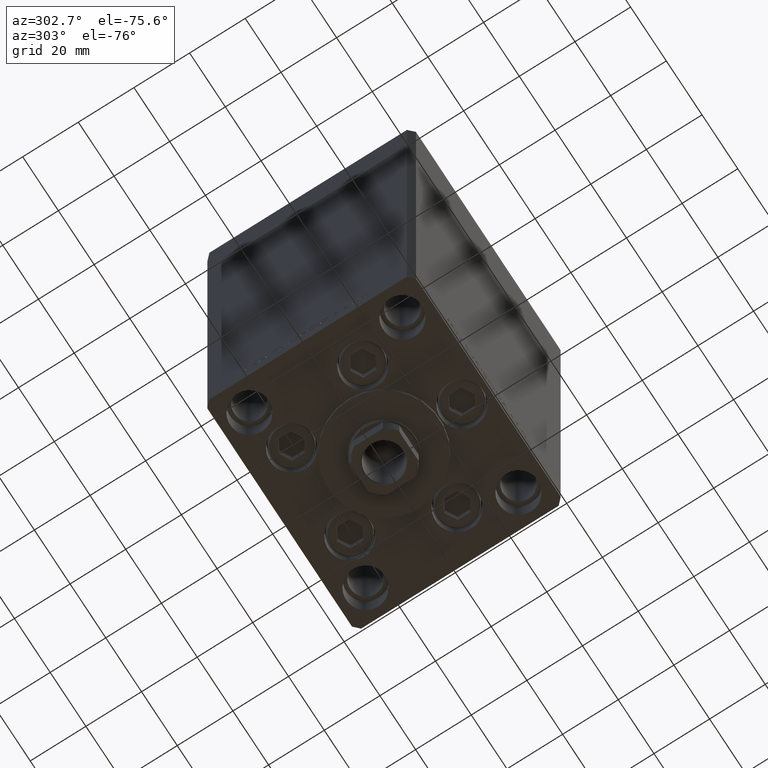
[diagram: clean part render]
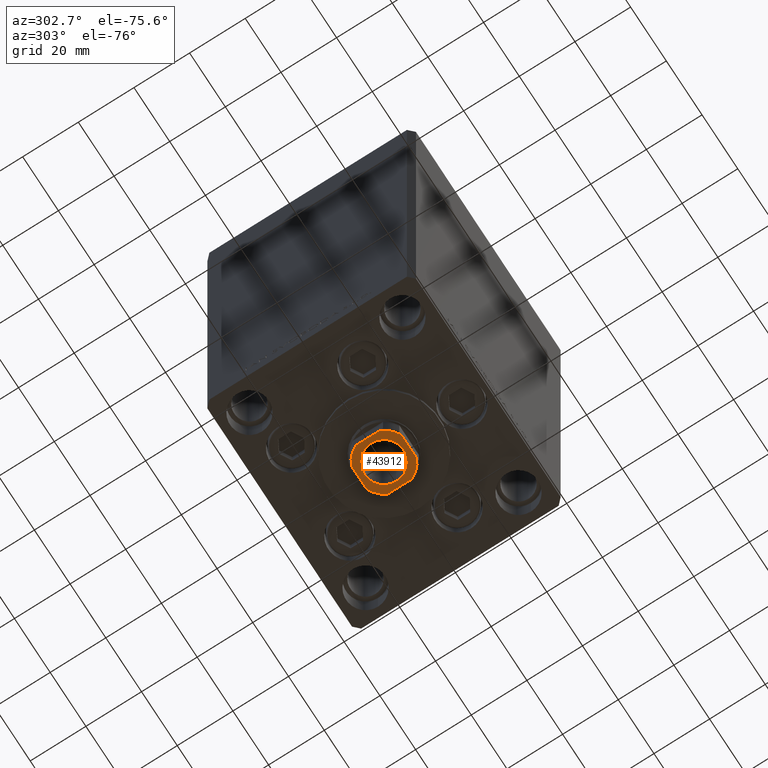
[diagram: same view with one face highlighted and labeled with its STEP entity id]
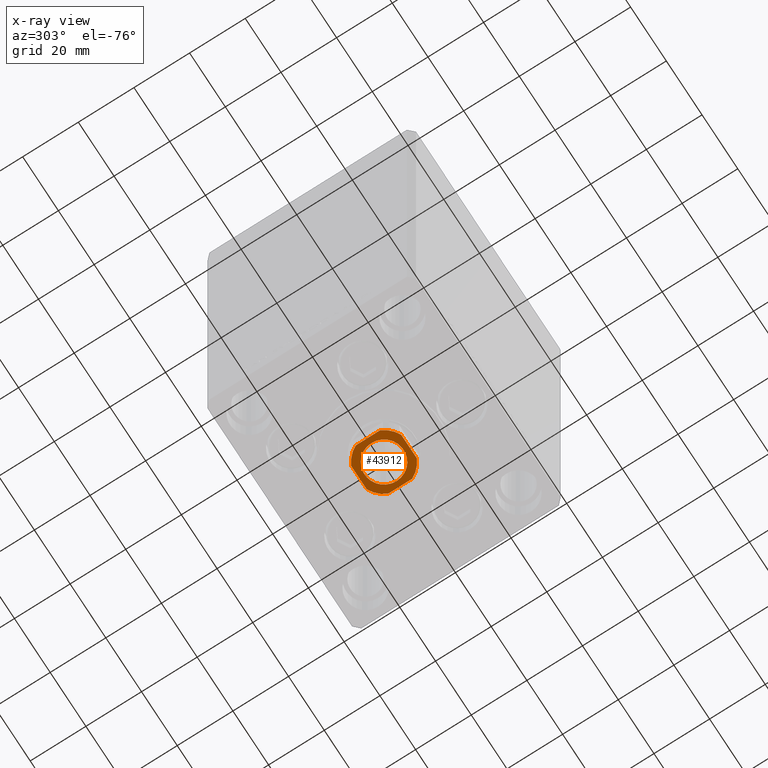
[diagram: x-ray of the same camera — body ghosted, the highlighted face saturated]
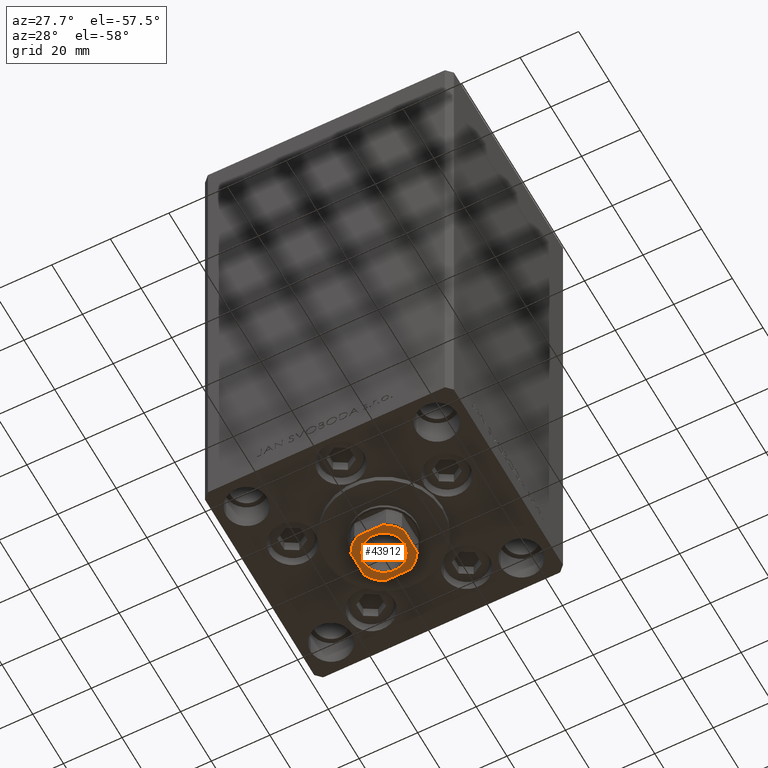
[diagram: same view with one face highlighted and labeled with its STEP entity id]
A machine part, auxiliary view. The second image highlights one B-rep face of the part: STEP entity #43912.
The next image is the same camera in x-ray: the body ghosted, the highlighted face saturated — about 0% of this face is hidden behind the body in this view.
A second angle (auxiliary view) of the same face is appended — the face is thin or edge-on in the first view.
In plain terms, the highlighted planar face has unit normal (0, 0, -1).
Its self-contained STEP definition (entity closure, byte-faithful):
#194 = DIRECTION ( 'NONE',  ( 1.000000000000000000, 0.000000000000000000, 0.000000000000000000 ) ) ;
#283 = AXIS2_PLACEMENT_3D ( 'NONE', #7427, #6708, #3476 ) ;
#309 = AXIS2_PLACEMENT_3D ( 'NONE', #41352, #18350, #14641 ) ;
#369 = VERTEX_POINT ( 'NONE', #6801 ) ;
#636 = ORIENTED_EDGE ( 'NONE', *, *, #32932, .T. ) ;
#1519 = DIRECTION ( 'NONE',  ( 0.000000000000000000, -0.000000000000000000, -1.000000000000000000 ) ) ;
#1669 = CARTESIAN_POINT ( 'NONE',  ( 9.000000000000000000, 8.999999999999998224, 155.7500000000000000 ) ) ;
#1725 = VECTOR ( 'NONE', #25901, 1000.000000000000000 ) ;
#1872 = ORIENTED_EDGE ( 'NONE', *, *, #42973, .T. ) ;
#1877 = CIRCLE ( 'NONE', #283, 10.00000000000000000 ) ;
#2185 = EDGE_CURVE ( 'NONE', #33378, #5725, #2650, .T. ) ;
#2650 = LINE ( 'NONE', #10075, #1725 ) ;
#2986 = ORIENTED_EDGE ( 'NONE', *, *, #2185, .T. ) ;
#3476 = DIRECTION ( 'NONE',  ( 1.000000000000000000, 0.000000000000000000, 0.000000000000000000 ) ) ;
#4044 = PLANE ( 'NONE',  #23955 ) ;
#4939 = EDGE_CURVE ( 'NONE', #33573, #15600, #47645, .T. ) ;
#4944 = CARTESIAN_POINT ( 'NONE',  ( -9.000000000000000000, 4.358898943540674864, 155.7500000000000000 ) ) ;
#5725 = VERTEX_POINT ( 'NONE', #46442 ) ;
#5755 = AXIS2_PLACEMENT_3D ( 'NONE', #24168, #43470, #36529 ) ;
#6708 = DIRECTION ( 'NONE',  ( -0.000000000000000000, 0.000000000000000000, 1.000000000000000000 ) ) ;
#6786 = ORIENTED_EDGE ( 'NONE', *, *, #22896, .T. ) ;
#6801 = CARTESIAN_POINT ( 'NONE',  ( 9.000000000000001776, -4.358898943540675752, 155.7500000000000000 ) ) ;
#7057 = CARTESIAN_POINT ( 'NONE',  ( 4.358898943540671311, -9.000000000000001776, 155.7500000000000000 ) ) ;
#7155 = EDGE_CURVE ( 'NONE', #5725, #35725, #48489, .T. ) ;
#7427 = CARTESIAN_POINT ( 'NONE',  ( 0.000000000000000000, 0.000000000000000000, 155.7500000000000000 ) ) ;
#9337 = CARTESIAN_POINT ( 'NONE',  ( -7.050000000000000711, 8.633759933988840961E-16, 155.7500000000000000 ) ) ;
#10075 = CARTESIAN_POINT ( 'NONE',  ( -9.000000000000000000, 8.999999999999998224, 155.7500000000000000 ) ) ;
#10758 = DIRECTION ( 'NONE',  ( 1.000000000000000000, 0.000000000000000000, 0.000000000000000000 ) ) ;
#10855 = CARTESIAN_POINT ( 'NONE',  ( 0.000000000000000000, 0.000000000000000000, 155.7500000000000000 ) ) ;
#11059 = EDGE_CURVE ( 'NONE', #40674, #33378, #25610, .T. ) ;
#11232 = CARTESIAN_POINT ( 'NONE',  ( -8.999999999999998224, -9.000000000000001776, 155.7500000000000000 ) ) ;
#11849 = CARTESIAN_POINT ( 'NONE',  ( 7.050000000000000711, 0.000000000000000000, 155.7500000000000000 ) ) ;
#12185 = DIRECTION ( 'NONE',  ( 1.000000000000000000, 0.000000000000000000, 0.000000000000000000 ) ) ;
#12238 = CIRCLE ( 'NONE', #25692, 7.050000000000000711 ) ;
#13839 = EDGE_LOOP ( 'NONE', ( #2986, #29436, #21359, #29539, #636, #18874, #1872, #43277 ) ) ;
#13842 = EDGE_CURVE ( 'NONE', #31106, #46630, #12238, .T. ) ;
#14641 = DIRECTION ( 'NONE',  ( 1.000000000000000000, 0.000000000000000000, 0.000000000000000000 ) ) ;
#15426 = FACE_BOUND ( 'NONE', #46315, .T. ) ;
#15600 = VERTEX_POINT ( 'NONE', #26130 ) ;
#16948 = CARTESIAN_POINT ( 'NONE',  ( -4.358898943540678417, 8.999999999999998224, 155.7500000000000000 ) ) ;
#17483 = EDGE_CURVE ( 'NONE', #35725, #48170, #22373, .T. ) ;
#18066 = DIRECTION ( 'NONE',  ( -1.000000000000000000, -0.000000000000000000, -0.000000000000000000 ) ) ;
#18350 = DIRECTION ( 'NONE',  ( -0.000000000000000000, 0.000000000000000000, 1.000000000000000000 ) ) ;
#18411 = DIRECTION ( 'NONE',  ( -0.000000000000000000, 0.000000000000000000, 1.000000000000000000 ) ) ;
#18874 = ORIENTED_EDGE ( 'NONE', *, *, #4939, .T. ) ;
#19380 = CARTESIAN_POINT ( 'NONE',  ( 0.000000000000000000, 0.000000000000000000, 155.7500000000000000 ) ) ;
#19923 = ORIENTED_EDGE ( 'NONE', *, *, #13842, .T. ) ;
#20712 = LINE ( 'NONE', #1669, #44280 ) ;
#21359 = ORIENTED_EDGE ( 'NONE', *, *, #17483, .T. ) ;
#22373 = LINE ( 'NONE', #11232, #25005 ) ;
#22896 = EDGE_CURVE ( 'NONE', #46630, #31106, #41003, .T. ) ;
#23955 = AXIS2_PLACEMENT_3D ( 'NONE', #19380, #34475, #12185 ) ;
#24033 = CARTESIAN_POINT ( 'NONE',  ( 0.000000000000000000, 0.000000000000000000, 155.7500000000000000 ) ) ;
#24168 = CARTESIAN_POINT ( 'NONE',  ( 0.000000000000000000, 0.000000000000000000, 155.7500000000000000 ) ) ;
#24773 = DIRECTION ( 'NONE',  ( 1.000000000000000000, 0.000000000000000000, 0.000000000000000000 ) ) ;
#24933 = DIRECTION ( 'NONE',  ( -9.637352644315595243E-17, 1.000000000000000000, -0.000000000000000000 ) ) ;
#25005 = VECTOR ( 'NONE', #10758, 1000.000000000000000 ) ;
#25610 = CIRCLE ( 'NONE', #309, 10.00000000000000000 ) ;
#25692 = AXIS2_PLACEMENT_3D ( 'NONE', #24033, #1519, #24773 ) ;
#25901 = DIRECTION ( 'NONE',  ( 9.637352644315595243E-17, -1.000000000000000000, 0.000000000000000000 ) ) ;
#26130 = CARTESIAN_POINT ( 'NONE',  ( 4.358898943540677529, 8.999999999999998224, 155.7500000000000000 ) ) ;
#26577 = CARTESIAN_POINT ( 'NONE',  ( 0.000000000000000000, 0.000000000000000000, 155.7500000000000000 ) ) ;
#27627 = CARTESIAN_POINT ( 'NONE',  ( -4.358898943540671311, -9.000000000000001776, 155.7500000000000000 ) ) ;
#28980 = LINE ( 'NONE', #44055, #32625 ) ;
#29436 = ORIENTED_EDGE ( 'NONE', *, *, #7155, .T. ) ;
#29539 = ORIENTED_EDGE ( 'NONE', *, *, #48754, .T. ) ;
#30639 = DIRECTION ( 'NONE',  ( 0.000000000000000000, -0.000000000000000000, -1.000000000000000000 ) ) ;
#31106 = VERTEX_POINT ( 'NONE', #9337 ) ;
#32312 = AXIS2_PLACEMENT_3D ( 'NONE', #10855, #30639, #194 ) ;
#32625 = VECTOR ( 'NONE', #18066, 1000.000000000000000 ) ;
#32932 = EDGE_CURVE ( 'NONE', #369, #33573, #20712, .T. ) ;
#33378 = VERTEX_POINT ( 'NONE', #4944 ) ;
#33573 = VERTEX_POINT ( 'NONE', #48465 ) ;
#34297 = AXIS2_PLACEMENT_3D ( 'NONE', #26577, #18411, #41663 ) ;
#34475 = DIRECTION ( 'NONE',  ( -0.000000000000000000, 0.000000000000000000, 1.000000000000000000 ) ) ;
#34950 = FACE_OUTER_BOUND ( 'NONE', #13839, .T. ) ;
#35725 = VERTEX_POINT ( 'NONE', #27627 ) ;
#36529 = DIRECTION ( 'NONE',  ( 1.000000000000000000, 0.000000000000000000, 0.000000000000000000 ) ) ;
#40674 = VERTEX_POINT ( 'NONE', #16948 ) ;
#41003 = CIRCLE ( 'NONE', #32312, 7.050000000000000711 ) ;
#41352 = CARTESIAN_POINT ( 'NONE',  ( 0.000000000000000000, 0.000000000000000000, 155.7500000000000000 ) ) ;
#41663 = DIRECTION ( 'NONE',  ( 1.000000000000000000, 0.000000000000000000, 0.000000000000000000 ) ) ;
#42973 = EDGE_CURVE ( 'NONE', #15600, #40674, #28980, .T. ) ;
#43277 = ORIENTED_EDGE ( 'NONE', *, *, #11059, .T. ) ;
#43470 = DIRECTION ( 'NONE',  ( -0.000000000000000000, 0.000000000000000000, 1.000000000000000000 ) ) ;
#43912 = ADVANCED_FACE ( 'NONE', ( #15426, #34950 ), #4044, .T. ) ;
#44055 = CARTESIAN_POINT ( 'NONE',  ( -9.000000000000000000, 8.999999999999998224, 155.7500000000000000 ) ) ;
#44280 = VECTOR ( 'NONE', #24933, 1000.000000000000000 ) ;
#46315 = EDGE_LOOP ( 'NONE', ( #6786, #19923 ) ) ;
#46442 = CARTESIAN_POINT ( 'NONE',  ( -9.000000000000000000, -4.358898943540675752, 155.7500000000000000 ) ) ;
#46630 = VERTEX_POINT ( 'NONE', #11849 ) ;
#47645 = CIRCLE ( 'NONE', #5755, 10.00000000000000000 ) ;
#48170 = VERTEX_POINT ( 'NONE', #7057 ) ;
#48465 = CARTESIAN_POINT ( 'NONE',  ( 9.000000000000000000, 4.358898943540675752, 155.7500000000000000 ) ) ;
#48489 = CIRCLE ( 'NONE', #34297, 10.00000000000000000 ) ;
#48754 = EDGE_CURVE ( 'NONE', #48170, #369, #1877, .T. ) ;